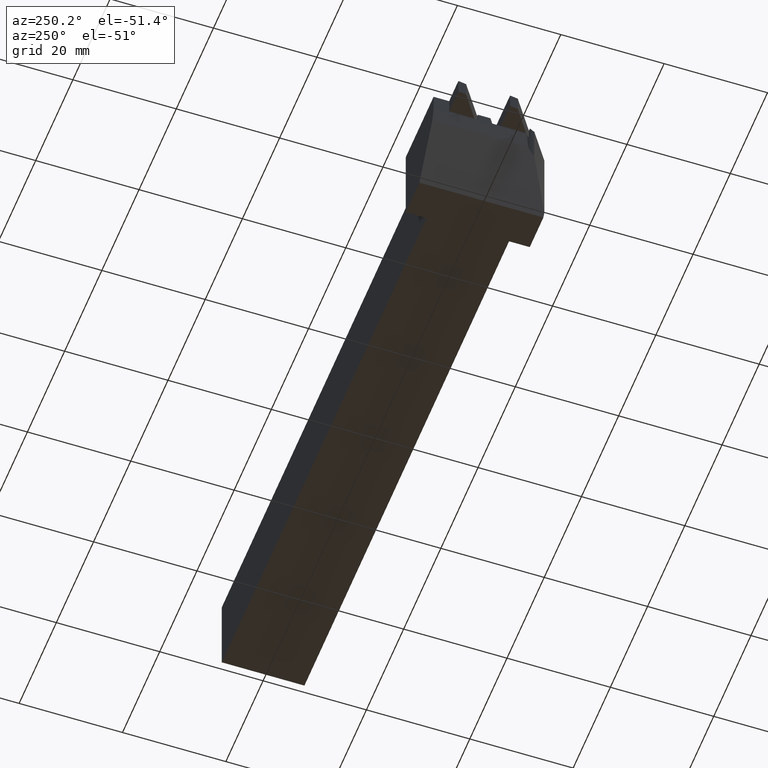
[diagram: clean part render]
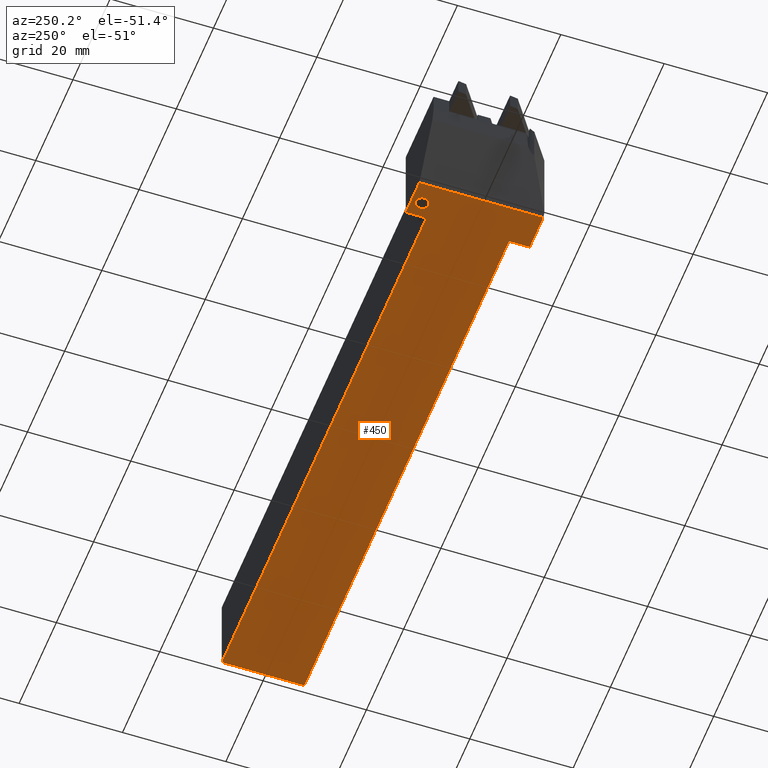
[diagram: same view with one face highlighted and labeled with its STEP entity id]
A machine part, auxiliary view. The second image highlights one B-rep face of the part: STEP entity #450.
In plain terms, the highlighted planar face has unit normal (-0, 0, 1).
Its self-contained STEP definition (entity closure, byte-faithful):
#19 = VERTEX_POINT ( 'NONE', #1342 ) ;
#123 = VERTEX_POINT ( 'NONE', #1880 ) ;
#153 = DIRECTION ( 'NONE',  ( 0.0000000000000000000, -0.0000000000000000000, -1.000000000000000000 ) ) ;
#159 = VECTOR ( 'NONE', #800, 1000.000000000000000 ) ;
#187 = EDGE_CURVE ( 'NONE', #2112, #2300, #1545, .T. ) ;
#211 = CARTESIAN_POINT ( 'NONE',  ( 0.0000000000000000000, 0.0000000000000000000, -16.00000000000000000 ) ) ;
#214 = FACE_OUTER_BOUND ( 'NONE', #333, .T. ) ;
#296 = DIRECTION ( 'NONE',  ( -1.000000000000000000, -0.0000000000000000000, -0.0000000000000000000 ) ) ;
#333 = EDGE_LOOP ( 'NONE', ( #1028, #1435, #338, #2318, #1839, #388, #1411, #2908 ) ) ;
#338 = ORIENTED_EDGE ( 'NONE', *, *, #967, .F. ) ;
#380 = LINE ( 'NONE', #2928, #1098 ) ;
#388 = ORIENTED_EDGE ( 'NONE', *, *, #2174, .F. ) ;
#450 = ADVANCED_FACE ( 'NONE', ( #779, #214 ), #478, .F. ) ;
#478 = PLANE ( 'NONE',  #1226 ) ;
#486 = DIRECTION ( 'NONE',  ( -1.000000000000000000, -2.312964634635743000E-016, -0.0000000000000000000 ) ) ;
#497 = CARTESIAN_POINT ( 'NONE',  ( 0.0000000000000000000, -8.000000000000010700, -16.00000000000000000 ) ) ;
#500 = DIRECTION ( 'NONE',  ( -0.0000000000000000000, 0.0000000000000000000, 1.000000000000000000 ) ) ;
#722 = EDGE_CURVE ( 'NONE', #1299, #1350, #3329, .T. ) ;
#774 = DIRECTION ( 'NONE',  ( 1.000000000000000000, 0.0000000000000000000, 0.0000000000000000000 ) ) ;
#779 = FACE_BOUND ( 'NONE', #2811, .T. ) ;
#800 = DIRECTION ( 'NONE',  ( 1.000000000000000000, 0.0000000000000000000, 0.0000000000000000000 ) ) ;
#846 = AXIS2_PLACEMENT_3D ( 'NONE', #1752, #3294, #1492 ) ;
#871 = CARTESIAN_POINT ( 'NONE',  ( -117.3280516368250700, 176.1060491531268000, -16.00000000000000000 ) ) ;
#902 = DIRECTION ( 'NONE',  ( -2.659779766898156400E-017, 1.000000000000000000, -0.0000000000000000000 ) ) ;
#967 = EDGE_CURVE ( 'NONE', #19, #2112, #1889, .T. ) ;
#1027 = CARTESIAN_POINT ( 'NONE',  ( -125.0000000000000000, 11.99999999999998400, -16.00000000000000000 ) ) ;
#1028 = ORIENTED_EDGE ( 'NONE', *, *, #1586, .F. ) ;
#1034 = DIRECTION ( 'NONE',  ( -0.0000000000000000000, 1.000000000000000000, -0.0000000000000000000 ) ) ;
#1041 = VERTEX_POINT ( 'NONE', #2790 ) ;
#1098 = VECTOR ( 'NONE', #902, 1000.000000000000000 ) ;
#1124 = EDGE_CURVE ( 'NONE', #123, #2848, #3015, .T. ) ;
#1226 = AXIS2_PLACEMENT_3D ( 'NONE', #211, #500, #774 ) ;
#1299 = VERTEX_POINT ( 'NONE', #3215 ) ;
#1337 = VECTOR ( 'NONE', #2202, 1000.000000000000000 ) ;
#1342 = CARTESIAN_POINT ( 'NONE',  ( -110.0000000000000000, 7.999999999999989300, -16.00000000000000000 ) ) ;
#1350 = VERTEX_POINT ( 'NONE', #1911 ) ;
#1405 = VECTOR ( 'NONE', #1034, 1000.000000000000000 ) ;
#1411 = ORIENTED_EDGE ( 'NONE', *, *, #2690, .F. ) ;
#1418 = CIRCLE ( 'NONE', #846, 1.250000000000001100 ) ;
#1435 = ORIENTED_EDGE ( 'NONE', *, *, #187, .F. ) ;
#1485 = VERTEX_POINT ( 'NONE', #497 ) ;
#1492 = DIRECTION ( 'NONE',  ( 1.000000000000000000, 0.0000000000000000000, 0.0000000000000000000 ) ) ;
#1545 = LINE ( 'NONE', #1027, #3127 ) ;
#1554 = VECTOR ( 'NONE', #2915, 1000.000000000000000 ) ;
#1586 = EDGE_CURVE ( 'NONE', #2300, #1299, #2881, .T. ) ;
#1638 = LINE ( 'NONE', #2136, #1554 ) ;
#1752 = CARTESIAN_POINT ( 'NONE',  ( -113.0000000000000000, 9.899999999999987900, -16.00000000000000000 ) ) ;
#1774 = VERTEX_POINT ( 'NONE', #2778 ) ;
#1828 = CARTESIAN_POINT ( 'NONE',  ( -110.0000000000000000, 11.99999999999998800, -16.00000000000000000 ) ) ;
#1839 = ORIENTED_EDGE ( 'NONE', *, *, #2903, .F. ) ;
#1880 = CARTESIAN_POINT ( 'NONE',  ( -111.7500000000000000, 9.899999999999987900, -16.00000000000000000 ) ) ;
#1889 = LINE ( 'NONE', #1828, #1405 ) ;
#1909 = EDGE_CURVE ( 'NONE', #2848, #123, #1418, .T. ) ;
#1911 = CARTESIAN_POINT ( 'NONE',  ( -110.0000000000000000, -12.00000000000001600, -16.00000000000000000 ) ) ;
#1922 = CARTESIAN_POINT ( 'NONE',  ( -110.0000000000000000, 7.999999999999989300, -16.00000000000000000 ) ) ;
#2005 = ORIENTED_EDGE ( 'NONE', *, *, #1124, .F. ) ;
#2039 = CARTESIAN_POINT ( 'NONE',  ( -113.0000000000000000, 9.899999999999987900, -16.00000000000000000 ) ) ;
#2070 = EDGE_CURVE ( 'NONE', #1041, #19, #2806, .T. ) ;
#2112 = VERTEX_POINT ( 'NONE', #3436 ) ;
#2136 = CARTESIAN_POINT ( 'NONE',  ( -110.0000000000000000, -12.00000000000001600, -16.00000000000000000 ) ) ;
#2174 = EDGE_CURVE ( 'NONE', #1774, #1485, #2994, .T. ) ;
#2202 = DIRECTION ( 'NONE',  ( 0.0000000000000000000, -1.000000000000000000, 0.0000000000000000000 ) ) ;
#2274 = CARTESIAN_POINT ( 'NONE',  ( -117.3280516368250700, 11.99999999999998200, -16.00000000000000000 ) ) ;
#2289 = VECTOR ( 'NONE', #296, 1000.000000000000000 ) ;
#2300 = VERTEX_POINT ( 'NONE', #2274 ) ;
#2309 = DIRECTION ( 'NONE',  ( 1.000000000000000000, 0.0000000000000000000, 0.0000000000000000000 ) ) ;
#2318 = ORIENTED_EDGE ( 'NONE', *, *, #2070, .F. ) ;
#2347 = CARTESIAN_POINT ( 'NONE',  ( -125.0000000000000000, -12.00000000000001600, -16.00000000000000000 ) ) ;
#2412 = CARTESIAN_POINT ( 'NONE',  ( -114.2500000000000000, 9.899999999999987900, -16.00000000000000000 ) ) ;
#2606 = DIRECTION ( 'NONE',  ( 1.000000000000000000, 0.0000000000000000000, 0.0000000000000000000 ) ) ;
#2690 = EDGE_CURVE ( 'NONE', #1350, #1774, #1638, .T. ) ;
#2778 = CARTESIAN_POINT ( 'NONE',  ( -110.0000000000000000, -8.000000000000010700, -16.00000000000000000 ) ) ;
#2790 = CARTESIAN_POINT ( 'NONE',  ( -4.255647627037050200E-016, 7.999999999999989300, -16.00000000000000000 ) ) ;
#2791 = VECTOR ( 'NONE', #2606, 1000.000000000000000 ) ;
#2795 = ORIENTED_EDGE ( 'NONE', *, *, #1909, .F. ) ;
#2806 = LINE ( 'NONE', #1922, #2289 ) ;
#2811 = EDGE_LOOP ( 'NONE', ( #2005, #2795 ) ) ;
#2848 = VERTEX_POINT ( 'NONE', #2412 ) ;
#2881 = LINE ( 'NONE', #871, #1337 ) ;
#2903 = EDGE_CURVE ( 'NONE', #1485, #1041, #380, .T. ) ;
#2908 = ORIENTED_EDGE ( 'NONE', *, *, #722, .F. ) ;
#2915 = DIRECTION ( 'NONE',  ( 0.0000000000000000000, 1.000000000000000000, 0.0000000000000000000 ) ) ;
#2928 = CARTESIAN_POINT ( 'NONE',  ( -4.255647627037050200E-016, 7.999999999999989300, -16.00000000000000000 ) ) ;
#2994 = LINE ( 'NONE', #3139, #159 ) ;
#3015 = CIRCLE ( 'NONE', #3041, 1.250000000000001100 ) ;
#3041 = AXIS2_PLACEMENT_3D ( 'NONE', #2039, #153, #2309 ) ;
#3127 = VECTOR ( 'NONE', #486, 1000.000000000000000 ) ;
#3139 = CARTESIAN_POINT ( 'NONE',  ( -110.0000000000000000, -8.000000000000010700, -16.00000000000000000 ) ) ;
#3215 = CARTESIAN_POINT ( 'NONE',  ( -117.3280516368250700, -12.00000000000001100, -16.00000000000000000 ) ) ;
#3294 = DIRECTION ( 'NONE',  ( 0.0000000000000000000, -0.0000000000000000000, -1.000000000000000000 ) ) ;
#3329 = LINE ( 'NONE', #2347, #2791 ) ;
#3436 = CARTESIAN_POINT ( 'NONE',  ( -110.0000000000000000, 11.99999999999998800, -16.00000000000000000 ) ) ;